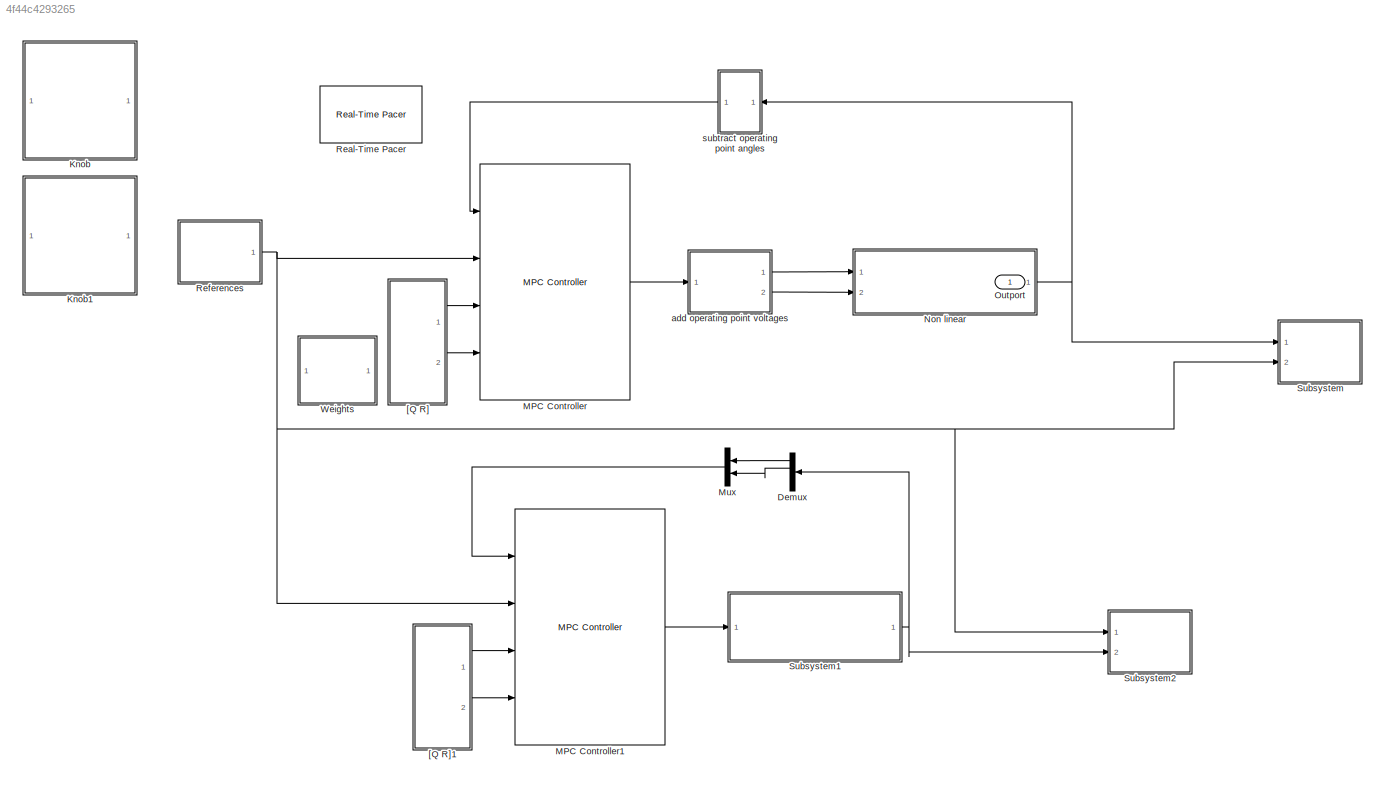
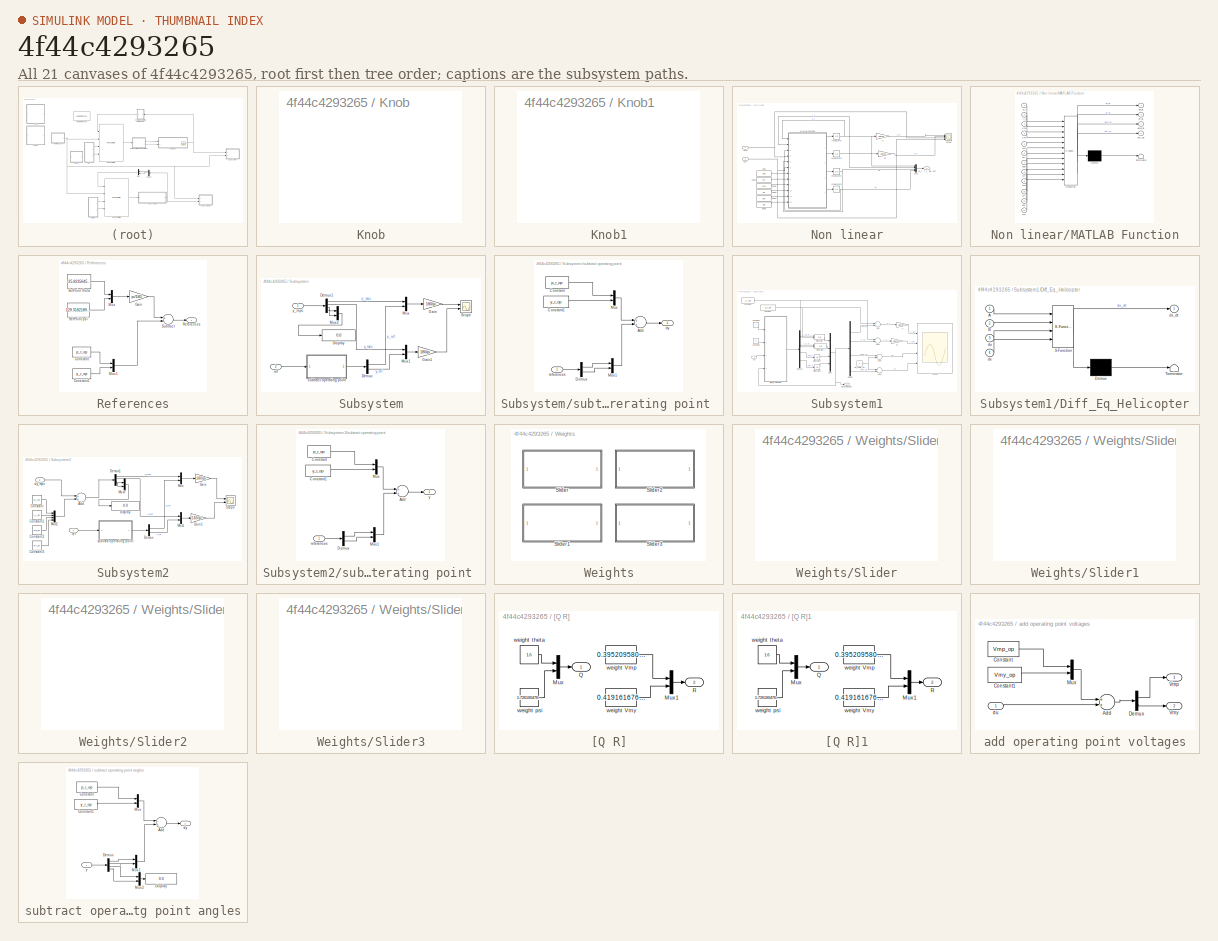
[diagram: thumbnail index - all 21 canvases of the model, root first then tree order]
MODEL slx_4f44c4293265
KIND model
CONFIG AbsTol = auto
CONFIG EnableMultiTasking = off
CONFIG FixedStep = 0.1
CONFIG MaxStep = auto
CONFIG MinStep = auto
CONFIG RelTol = 1e-3
CONFIG SampleTimeConstraint = Unconstrained
CONFIG Solver = ode4
CONFIG SolverName = ode4
CONFIG StartTime = 0.0
CONFIG StopTime = inf
BLOCK [Demux] Demux
  DisplayOption = bar
  Ports = [1, 4]
BLOCK [SubSystem] Knob
  DialogController = hmiCreateDDGDialog
  IsWebBlock = on
  MaskHideContents = on
  Ports = []
  RequestExecContextInheritance = off
BLOCK [SubSystem] Knob1
  DialogController = hmiCreateDDGDialog
  IsWebBlock = on
  MaskHideContents = on
  Ports = []
  RequestExecContextInheritance = off
BLOCK [Reference] MPC Controller  REF=mpclib/MPC Controller  (lib defined in mdl_ae329e0e0455)
  Ports = [4, 1]
  SCDEnableBlockLinearizationSpecification = on
  SourceBlock = mpclib/MPC Controller
  SourceProductBaseCode = MP
  SourceProductName = Model Predictive Control Toolbox
  SourceType = MPC
BLOCK [Reference] MPC Controller1  REF=mpclib/MPC Controller  (lib defined in mdl_ae329e0e0455)
  Ports = [4, 1]
  SCDEnableBlockLinearizationSpecification = on
  SourceBlock = mpclib/MPC Controller
  SourceProductBaseCode = MP
  SourceProductName = Model Predictive Control Toolbox
  SourceType = MPC
BLOCK [Mux] Mux
  DisplayOption = bar
  Inputs = 2
  Ports = [2, 1]
BLOCK [SubSystem] Non linear
  Ports = [2, 1]
  RequestExecContextInheritance = off
BLOCK [Integrator] Non linear/Integrator
  InitialCondition = d2r(-31.0537918783631)
  LimitOutput = on
  LowerSaturationLimit = -pi/4
  Ports = [1, 1]
  UpperSaturationLimit = pi/4
BLOCK [Integrator] Non linear/Integrator1
  InitialCondition = d2r(120.519928781055)
  LimitOutput = on
  LowerSaturationLimit = 0
  Ports = [1, 1]
  UpperSaturationLimit = pi
BLOCK [Integrator] Non linear/Integrator2
  LowerSaturationLimit = -1
  Ports = [1, 1]
  UpperSaturationLimit = 1
BLOCK [Integrator] Non linear/Integrator3
  Ports = [1, 1]
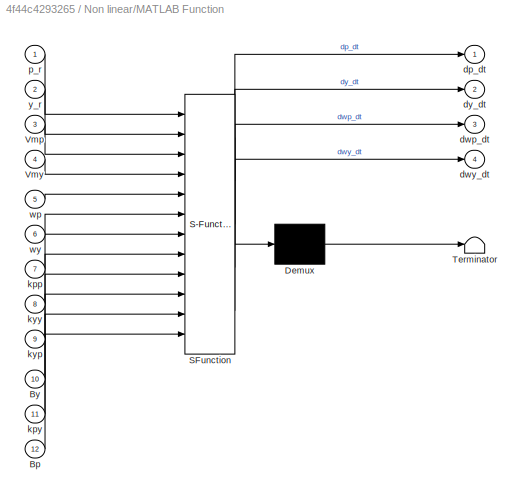
BLOCK [SubSystem] Non linear/MATLAB Function
  ErrorFcn = Stateflow.Translate.translate
  PermitHierarchicalResolution = ExplicitOnly
  Ports = [12, 4]
  RequestExecContextInheritance = off
  SFBlockType = MATLAB Function
  TreatAsAtomicUnit = on
BLOCK [Demux] Non linear/MATLAB Function/ Demux 
  Outputs = 1
  Ports = [1, 1]
BLOCK [S-Function] Non linear/MATLAB Function/ SFunction 
  EnableBusSupport = on
  FunctionName = sf_sfun
  Parameters = g,jeqp,jeqy,lcm,mheli
  PortCounts = [12 5]
  Ports = [12, 5]
  SFcnIsStateOwnerBlock = off
  SFunctionDeploymentMode = off
  Tag = Stateflow S-Function Helicopter_MPC 2
BLOCK [Terminator] Non linear/MATLAB Function/ Terminator 
BLOCK [Inport] Non linear/MATLAB Function/Bp
  IconDisplay = Port number
  Port = 12
BLOCK [Inport] Non linear/MATLAB Function/By
  IconDisplay = Port number
  Port = 10
BLOCK [Inport] Non linear/MATLAB Function/Vmp
  IconDisplay = Port number
  Port = 3
BLOCK [Inport] Non linear/MATLAB Function/Vmy
  IconDisplay = Port number
  Port = 4
BLOCK [Outport] Non linear/MATLAB Function/dp_dt
  IconDisplay = Port number
BLOCK [Outport] Non linear/MATLAB Function/dwp_dt
  IconDisplay = Port number
  Port = 3
BLOCK [Outport] Non linear/MATLAB Function/dwy_dt
  IconDisplay = Port number
  Port = 4
BLOCK [Outport] Non linear/MATLAB Function/dy_dt
  IconDisplay = Port number
  Port = 2
BLOCK [Inport] Non linear/MATLAB Function/kpp
  IconDisplay = Port number
  Port = 7
BLOCK [Inport] Non linear/MATLAB Function/kpy
  IconDisplay = Port number
  Port = 11
BLOCK [Inport] Non linear/MATLAB Function/kyp
  IconDisplay = Port number
  Port = 9
BLOCK [Inport] Non linear/MATLAB Function/kyy
  IconDisplay = Port number
  Port = 8
BLOCK [Inport] Non linear/MATLAB Function/p_r
  IconDisplay = Port number
BLOCK [Inport] Non linear/MATLAB Function/wp
  IconDisplay = Port number
  Port = 5
BLOCK [Inport] Non linear/MATLAB Function/wy
  IconDisplay = Port number
  Port = 6
BLOCK [Inport] Non linear/MATLAB Function/y_r
  IconDisplay = Port number
  Port = 2
BLOCK [Mux] Non linear/Mux
  DisplayOption = bar
  Ports = [4, 1]
BLOCK [Scope] Non linear/Scope
  Commented = on
  Floating = off
  NumInputPorts = 4
  Ports = [4]
  ScopeSpecificationString = Simulink.scopes.TimeScopeBlockCfg('CurrentConfiguration', extmgr.ConfigurationSet(extmgr.Configuration('Core','General UI',true),extmgr.Configuration('Core','Source UI',true),extmgr.Configuration('Sources','WiredSimulink',true),extmgr.Configuration('Visuals','Time Domain',true,'SerializedDisplays',{struct('MinYLimReal','-50.00000','MaxYLimReal','50.00000','YLabelReal','','MinYLimMag','0.00000','Ma...<+3364ch>
BLOCK [Inport] Non linear/Vmp
  IconDisplay = Port number
BLOCK [Inport] Non linear/Vmy
  IconDisplay = Port number
  Port = 2
BLOCK [Outport] Non linear/[p_r, y_r ,wp, wy]
  IconDisplay = Port number
BLOCK [Gain] Non linear/h
  Gain = 180/pi
  OutDataTypeStr = Inherit: Inherit via internal rule
  ParamDataTypeStr = Inherit: Inherit via internal rule
  SaturateOnIntegerOverflow = off
BLOCK [Gain] Non linear/h1
  Gain = 180/pi
  OutDataTypeStr = Inherit: Inherit via internal rule
  ParamDataTypeStr = Inherit: Inherit via internal rule
  SaturateOnIntegerOverflow = off
BLOCK [Constant] Non linear/kpp
  Value = kpp
BLOCK [Constant] Non linear/kpp1
  Value = kyy
BLOCK [Constant] Non linear/kpp2
  Value = kyp
BLOCK [Constant] Non linear/kpp3
  Value = By
BLOCK [Constant] Non linear/kpp4
  Value = kpy
BLOCK [Constant] Non linear/kpp5
  Value = Bp
BLOCK [Outport] Outport
  IconDisplay = Port number
BLOCK [Reference] Real-Time Pacer  REF=realtime_pacer_lib/Real-Time Pacer
  Ports = []
  SourceBlock = realtime_pacer_lib/Real-Time Pacer
  SourceType = RealTime_Pacer
BLOCK [SubSystem] References
  Ports = [0, 1]
  RequestExecContextInheritance = off
BLOCK [Constant] References/Constant
  Value = p_r_op
BLOCK [Constant] References/Constant1
  Value = y_r_op
BLOCK [Gain] References/Gain
  Gain = pi/180
  OutDataTypeStr = Inherit: Inherit via internal rule
  ParamDataTypeStr = Inherit: Inherit via internal rule
  SaturateOnIntegerOverflow = off
BLOCK [Mux] References/Mux
  DisplayOption = bar
  Inputs = 2
  Ports = [2, 1]
BLOCK [Mux] References/Mux1
  DisplayOption = bar
  Inputs = 2
  Ports = [2, 1]
BLOCK [Outport] References/References
  IconDisplay = Port number
BLOCK [Constant] References/SetPoint psi
  Value = 129.31821899414
BLOCK [Constant] References/SetPoint theta
  Value = -25.82356452942
BLOCK [Sum] References/Subtract
  InputSameDT = off
  Inputs = +-
  OutDataTypeStr = Inherit: Inherit via internal rule
  Ports = [2, 1]
  SaturateOnIntegerOverflow = off
BLOCK [SubSystem] Subsystem
  Ports = [2]
  RequestExecContextInheritance = off
BLOCK [Demux] Subsystem/Demux
  DisplayOption = bar
  Outputs = 2
  Ports = [1, 2]
BLOCK [Demux] Subsystem/Demux1
  DisplayOption = bar
  Ports = [1, 4]
BLOCK [Display] Subsystem/Display
  Decimation = 1
  Ports = [1]
BLOCK [Gain] Subsystem/Gain
  Gain = 180/pi
  OutDataTypeStr = Inherit: Inherit via internal rule
  ParamDataTypeStr = Inherit: Inherit via internal rule
  SaturateOnIntegerOverflow = off
BLOCK [Gain] Subsystem/Gain1
  Gain = 180/pi
  OutDataTypeStr = Inherit: Inherit via internal rule
  ParamDataTypeStr = Inherit: Inherit via internal rule
  SaturateOnIntegerOverflow = off
BLOCK [Mux] Subsystem/Mux
  DisplayOption = bar
  Inputs = 2
  Ports = [2, 1]
BLOCK [Mux] Subsystem/Mux1
  DisplayOption = bar
  Inputs = 2
  Ports = [2, 1]
BLOCK [Mux] Subsystem/Mux2
  DisplayOption = bar
  Inputs = 2
  Ports = [2, 1]
BLOCK [Scope] Subsystem/Scope
  Floating = off
  NumInputPorts = 2
  Ports = [2]
  ScopeSpecificationString = Simulink.scopes.TimeScopeBlockCfg('CurrentConfiguration', extmgr.ConfigurationSet(extmgr.Configuration('Core','General UI',true),extmgr.Configuration('Core','Source UI',true),extmgr.Configuration('Sources','WiredSimulink',true,'DataLoggingVariableName','ScopeData1'),extmgr.Configuration('Visuals','Time Domain',true,'SerializedDisplays',{struct('MinYLimReal','-46','MaxYLimReal','46','YLabelReal',''...<+2048ch>
BLOCK [Inport] Subsystem/ref
  IconDisplay = Port number
  Port = 2
BLOCK [SubSystem] Subsystem/subtract operating point 
  Ports = [1, 1]
  RequestExecContextInheritance = off
BLOCK [Sum] Subsystem/subtract operating point /Add
  InputSameDT = off
  OutDataTypeStr = Inherit: Inherit via internal rule
  Ports = [2, 1]
  SaturateOnIntegerOverflow = off
BLOCK [Constant] Subsystem/subtract operating point /Constant
  Value = p_r_op
BLOCK [Constant] Subsystem/subtract operating point /Constant1
  Value = y_r_op
BLOCK [Demux] Subsystem/subtract operating point /Demux
  DisplayOption = bar
  Outputs = 2
  Ports = [1, 2]
BLOCK [Mux] Subsystem/subtract operating point /Mux
  DisplayOption = bar
  Inputs = 2
  Ports = [2, 1]
BLOCK [Mux] Subsystem/subtract operating point /Mux1
  DisplayOption = bar
  Inputs = 2
  Ports = [2, 1]
BLOCK [Outport] Subsystem/subtract operating point /dy
  IconDisplay = Port number
BLOCK [Inport] Subsystem/subtract operating point /references 
  IconDisplay = Port number
BLOCK [Inport] Subsystem/y_mpc
  IconDisplay = Port number
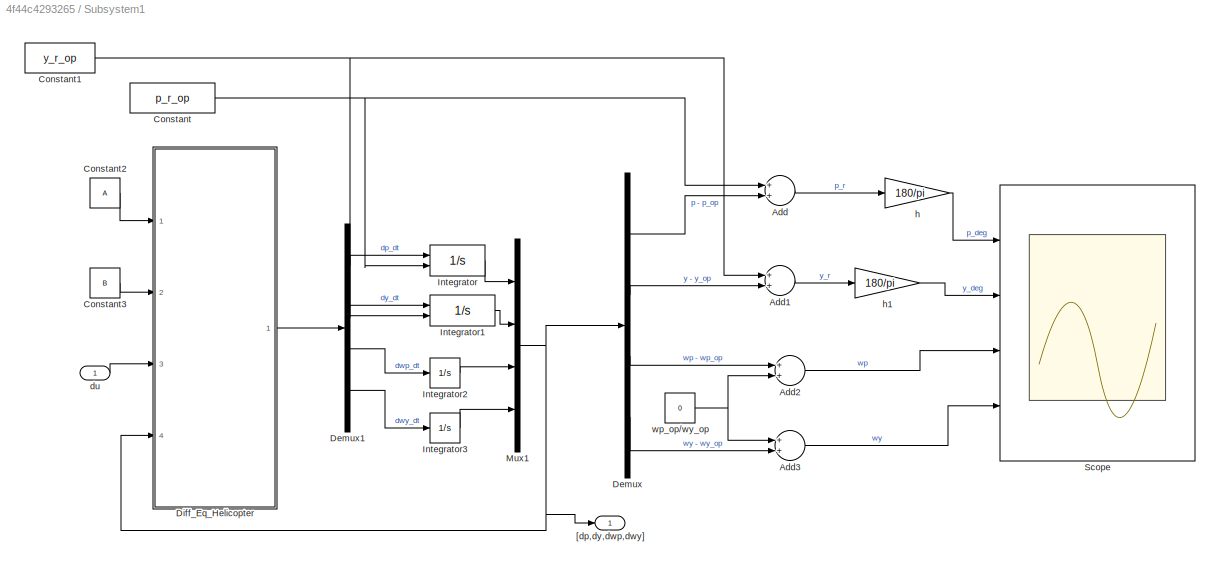
BLOCK [SubSystem] Subsystem1
  Ports = [1, 1]
  RequestExecContextInheritance = off
BLOCK [Sum] Subsystem1/Add
  InputSameDT = off
  OutDataTypeStr = Inherit: Inherit via internal rule
  Ports = [2, 1]
  SaturateOnIntegerOverflow = off
BLOCK [Sum] Subsystem1/Add1
  InputSameDT = off
  OutDataTypeStr = Inherit: Inherit via internal rule
  Ports = [2, 1]
  SaturateOnIntegerOverflow = off
BLOCK [Sum] Subsystem1/Add2
  InputSameDT = off
  OutDataTypeStr = Inherit: Inherit via internal rule
  Ports = [2, 1]
  SaturateOnIntegerOverflow = off
BLOCK [Sum] Subsystem1/Add3
  InputSameDT = off
  OutDataTypeStr = Inherit: Inherit via internal rule
  Ports = [2, 1]
  SaturateOnIntegerOverflow = off
BLOCK [Constant] Subsystem1/Constant
  Value = p_r_op
BLOCK [Constant] Subsystem1/Constant1
  Value = y_r_op
BLOCK [Constant] Subsystem1/Constant2
  Value = A
BLOCK [Constant] Subsystem1/Constant3
  Value = B
BLOCK [Demux] Subsystem1/Demux
  DisplayOption = bar
  Ports = [1, 4]
BLOCK [Demux] Subsystem1/Demux1
  DisplayOption = bar
  Ports = [1, 4]
BLOCK [SubSystem] Subsystem1/Diff_Eq_Helicopter
  ErrorFcn = Stateflow.Translate.translate
  PermitHierarchicalResolution = ExplicitOnly
  Ports = [4, 1]
  RequestExecContextInheritance = off
  SFBlockType = MATLAB Function
  TreatAsAtomicUnit = on
BLOCK [Demux] Subsystem1/Diff_Eq_Helicopter/ Demux 
  Outputs = 1
  Ports = [1, 1]
BLOCK [S-Function] Subsystem1/Diff_Eq_Helicopter/ SFunction 
  EnableBusSupport = on
  FunctionName = sf_sfun
  PortCounts = [4 2]
  Ports = [4, 2]
  SFcnIsStateOwnerBlock = off
  SFunctionDeploymentMode = off
  Tag = Stateflow S-Function Helicopter_MPC 3
BLOCK [Terminator] Subsystem1/Diff_Eq_Helicopter/ Terminator 
BLOCK [Inport] Subsystem1/Diff_Eq_Helicopter/A
  IconDisplay = Port number
BLOCK [Inport] Subsystem1/Diff_Eq_Helicopter/B
  IconDisplay = Port number
  Port = 2
BLOCK [Inport] Subsystem1/Diff_Eq_Helicopter/du
  IconDisplay = Port number
  Port = 3
BLOCK [Inport] Subsystem1/Diff_Eq_Helicopter/dx
  IconDisplay = Port number
  Port = 4
BLOCK [Outport] Subsystem1/Diff_Eq_Helicopter/dx_dt
  IconDisplay = Port number
BLOCK [Integrator] Subsystem1/Integrator
  InitialCondition = -10*pi/180
  InitialConditionSource = external
  LimitOutput = on
  LowerSaturationLimit = -pi/4 - (-10*pi/180)
  Ports = [2, 1]
  UpperSaturationLimit = pi/4 - (-10*pi/180)
BLOCK [Integrator] Subsystem1/Integrator1
  InitialCondition = pi/2
  InitialConditionSource = external
  LimitOutput = on
  LowerSaturationLimit = 0 - (pi/2)
  Ports = [2, 1]
  UpperSaturationLimit = pi - (pi/2)
BLOCK [Integrator] Subsystem1/Integrator2
  Ports = [1, 1]
  UpperSaturationLimit = pi
BLOCK [Integrator] Subsystem1/Integrator3
  Ports = [1, 1]
BLOCK [Mux] Subsystem1/Mux1
  DisplayOption = bar
  Ports = [4, 1]
BLOCK [Scope] Subsystem1/Scope
  Commented = on
  Floating = off
  NumInputPorts = 4
  Ports = [4]
  ScopeSpecificationString = Simulink.scopes.TimeScopeBlockCfg('CurrentConfiguration', extmgr.ConfigurationSet(extmgr.Configuration('Core','General UI',true,'FigureColor',[1 1 1]),extmgr.Configuration('Core','Source UI',true),extmgr.Configuration('Sources','WiredSimulink',true,'DataLoggingVariableName','ScopeData2'),extmgr.Configuration('Visuals','Time Domain',true,'SerializedDisplays',{struct('MinYLimReal','-45','MaxYLimReal...<+3682ch>
BLOCK [Outport] Subsystem1/[dp,dy,dwp,dwy]
  IconDisplay = Port number
BLOCK [Inport] Subsystem1/du
  IconDisplay = Port number
BLOCK [Gain] Subsystem1/h
  Gain = 180/pi
  OutDataTypeStr = Inherit: Inherit via internal rule
  ParamDataTypeStr = Inherit: Inherit via internal rule
  SaturateOnIntegerOverflow = off
BLOCK [Gain] Subsystem1/h1
  Gain = 180/pi
  OutDataTypeStr = Inherit: Inherit via internal rule
  ParamDataTypeStr = Inherit: Inherit via internal rule
  SaturateOnIntegerOverflow = off
BLOCK [Constant] Subsystem1/wp_op//wy_op
  Value = 0
BLOCK [SubSystem] Subsystem2
  Ports = [2]
  RequestExecContextInheritance = off
BLOCK [Sum] Subsystem2/Add
  InputSameDT = off
  OutDataTypeStr = Inherit: Inherit via internal rule
  Ports = [2, 1]
  SaturateOnIntegerOverflow = off
BLOCK [Constant] Subsystem2/Constant
  Value = p_r_op
BLOCK [Constant] Subsystem2/Constant1
  Value = y_r_op
BLOCK [Constant] Subsystem2/Constant2
  Value = wp_op
BLOCK [Constant] Subsystem2/Constant3
  Value = wy_op
BLOCK [Demux] Subsystem2/Demux
  DisplayOption = bar
  Outputs = 2
  Ports = [1, 2]
BLOCK [Demux] Subsystem2/Demux1
  DisplayOption = bar
  Ports = [1, 4]
BLOCK [Display] Subsystem2/Display
  Decimation = 1
  Ports = [1]
BLOCK [Gain] Subsystem2/Gain
  Gain = 180/pi
  OutDataTypeStr = Inherit: Inherit via internal rule
  ParamDataTypeStr = Inherit: Inherit via internal rule
  SaturateOnIntegerOverflow = off
BLOCK [Gain] Subsystem2/Gain1
  Gain = 180/pi
  OutDataTypeStr = Inherit: Inherit via internal rule
  ParamDataTypeStr = Inherit: Inherit via internal rule
  SaturateOnIntegerOverflow = off
BLOCK [Mux] Subsystem2/Mux
  DisplayOption = bar
  Inputs = 2
  Ports = [2, 1]
BLOCK [Mux] Subsystem2/Mux1
  DisplayOption = bar
  Inputs = 2
  Ports = [2, 1]
BLOCK [Mux] Subsystem2/Mux2
  DisplayOption = bar
  Ports = [4, 1]
BLOCK [Mux] Subsystem2/Mux3
  DisplayOption = bar
  Inputs = 2
  Ports = [2, 1]
BLOCK [Scope] Subsystem2/Scope
  Floating = off
  NumInputPorts = 2
  Ports = [2]
  ScopeSpecificationString = Simulink.scopes.TimeScopeBlockCfg('CurrentConfiguration', extmgr.ConfigurationSet(extmgr.Configuration('Core','General UI',true),extmgr.Configuration('Core','Source UI',true),extmgr.Configuration('Sources','WiredSimulink',true,'DataLoggingVariableName','ScopeData1'),extmgr.Configuration('Visuals','Time Domain',true,'SerializedDisplays',{struct('MinYLimReal','-46','MaxYLimReal','46','YLabelReal',''...<+2048ch>
BLOCK [Inport] Subsystem2/dy_mpc
  IconDisplay = Port number
  Port = 2
BLOCK [Inport] Subsystem2/ref
  IconDisplay = Port number
BLOCK [SubSystem] Subsystem2/subtract operating point 
  Ports = [1, 1]
  RequestExecContextInheritance = off
BLOCK [Sum] Subsystem2/subtract operating point /Add
  InputSameDT = off
  OutDataTypeStr = Inherit: Inherit via internal rule
  Ports = [2, 1]
  SaturateOnIntegerOverflow = off
BLOCK [Constant] Subsystem2/subtract operating point /Constant
  Value = p_r_op
BLOCK [Constant] Subsystem2/subtract operating point /Constant1
  Value = y_r_op
BLOCK [Demux] Subsystem2/subtract operating point /Demux
  DisplayOption = bar
  Outputs = 2
  Ports = [1, 2]
BLOCK [Mux] Subsystem2/subtract operating point /Mux
  DisplayOption = bar
  Inputs = 2
  Ports = [2, 1]
BLOCK [Mux] Subsystem2/subtract operating point /Mux1
  DisplayOption = bar
  Inputs = 2
  Ports = [2, 1]
BLOCK [Inport] Subsystem2/subtract operating point /references 
  IconDisplay = Port number
BLOCK [Outport] Subsystem2/subtract operating point /y
  IconDisplay = Port number
BLOCK [SubSystem] Weights
  Ports = []
  RequestExecContextInheritance = off
BLOCK [SubSystem] Weights/Slider
  DialogController = hmiCreateDDGDialog
  IsWebBlock = on
  MaskHideContents = on
  Ports = []
  RequestExecContextInheritance = off
BLOCK [SubSystem] Weights/Slider1
  DialogController = hmiCreateDDGDialog
  IsWebBlock = on
  MaskHideContents = on
  Ports = []
  RequestExecContextInheritance = off
BLOCK [SubSystem] Weights/Slider2
  DialogController = hmiCreateDDGDialog
  IsWebBlock = on
  MaskHideContents = on
  Ports = []
  RequestExecContextInheritance = off
BLOCK [SubSystem] Weights/Slider3
  DialogController = hmiCreateDDGDialog
  IsWebBlock = on
  MaskHideContents = on
  Ports = []
  RequestExecContextInheritance = off
BLOCK [SubSystem] [Q R]
  Ports = [0, 2]
  RequestExecContextInheritance = off
BLOCK [Mux] [Q R]/Mux
  DisplayOption = bar
  Inputs = 2
  Ports = [2, 1]
BLOCK [Mux] [Q R]/Mux1
  DisplayOption = bar
  Inputs = 2
  Ports = [2, 1]
BLOCK [Outport] [Q R]/Q
  IconDisplay = Port number
BLOCK [Outport] [Q R]/R
  IconDisplay = Port number
  Port = 2
BLOCK [Constant] [Q R]/weight Vmp
  Value = 0.3952095808383
BLOCK [Constant] [Q R]/weight Vmy
  Value = 0.4191616766467
BLOCK [Constant] [Q R]/weight psi
  Value = 1.7261904761905
BLOCK [Constant] [Q R]/weight theta
  Value = 1.6
BLOCK [SubSystem] [Q R]1
  Ports = [0, 2]
  RequestExecContextInheritance = off
BLOCK [Mux] [Q R]1/Mux
  DisplayOption = bar
  Inputs = 2
  Ports = [2, 1]
BLOCK [Mux] [Q R]1/Mux1
  DisplayOption = bar
  Inputs = 2
  Ports = [2, 1]
BLOCK [Outport] [Q R]1/Q
  IconDisplay = Port number
BLOCK [Outport] [Q R]1/R
  IconDisplay = Port number
  Port = 2
BLOCK [Constant] [Q R]1/weight Vmp
  Value = 0.3952095808383
BLOCK [Constant] [Q R]1/weight Vmy
  Value = 0.4191616766467
BLOCK [Constant] [Q R]1/weight psi
  Value = 1.7261904761905
BLOCK [Constant] [Q R]1/weight theta
  Value = 1.6
BLOCK [SubSystem] add operating point voltages
  Ports = [1, 2]
  RequestExecContextInheritance = off
BLOCK [Sum] add operating point voltages/Add
  InputSameDT = off
  OutDataTypeStr = Inherit: Inherit via internal rule
  Ports = [2, 1]
  SaturateOnIntegerOverflow = off
BLOCK [Constant] add operating point voltages/Constant
  Value = Vmp_op
BLOCK [Constant] add operating point voltages/Constant1
  Value = Vmy_op
BLOCK [Demux] add operating point voltages/Demux
  DisplayOption = bar
  Outputs = 2
  Ports = [1, 2]
BLOCK [Mux] add operating point voltages/Mux
  DisplayOption = bar
  Inputs = 2
  Ports = [2, 1]
BLOCK [Outport] add operating point voltages/Vmp
  IconDisplay = Port number
BLOCK [Outport] add operating point voltages/Vmy
  IconDisplay = Port number
  Port = 2
BLOCK [Inport] add operating point voltages/du 
  IconDisplay = Port number
BLOCK [SubSystem] subtract operating point angles
  Ports = [1, 1]
  RequestExecContextInheritance = off
BLOCK [Sum] subtract operating point angles/Add
  InputSameDT = off
  Inputs = -+
  OutDataTypeStr = Inherit: Inherit via internal rule
  Ports = [2, 1]
  SaturateOnIntegerOverflow = off
BLOCK [Constant] subtract operating point angles/Constant
  Value = p_r_op
BLOCK [Constant] subtract operating point angles/Constant1
  Value = y_r_op
BLOCK [Demux] subtract operating point angles/Demux
  DisplayOption = bar
  Ports = [1, 4]
BLOCK [Display] subtract operating point angles/Display
  Decimation = 1
  Ports = [1]
BLOCK [Mux] subtract operating point angles/Mux
  DisplayOption = bar
  Inputs = 2
  Ports = [2, 1]
BLOCK [Mux] subtract operating point angles/Mux1
  DisplayOption = bar
  Inputs = 2
  Ports = [2, 1]
BLOCK [Mux] subtract operating point angles/Mux2
  DisplayOption = bar
  Inputs = 2
  Ports = [2, 1]
BLOCK [Outport] subtract operating point angles/dy
  IconDisplay = Port number
BLOCK [Inport] subtract operating point angles/y 
  IconDisplay = Port number
LINE Demux:1 -> Mux:1
LINE Demux:2 -> Mux:2
LINE MPC Controller1:1 -> Subsystem1:1
LINE MPC Controller:1 -> add operating point voltages:1
LINE Mux:1 -> MPC Controller1:1
NET Non linear/Integrator1:1 -> Non linear/MATLAB Function:2, Non linear/Mux:2, Non linear/h1:1
NET Non linear/Integrator2:1 -> Non linear/MATLAB Function:5, Non linear/Mux:3
NET Non linear/Integrator3:1 -> Non linear/MATLAB Function:6, Non linear/Mux:4
NET Non linear/Integrator:1 -> Non linear/MATLAB Function:1, Non linear/Mux:1, Non linear/h:1
LINE Non linear/MATLAB Function:1 -> Non linear/Integrator:1
LINE Non linear/MATLAB Function:2 -> Non linear/Integrator1:1
LINE Non linear/MATLAB Function:3 -> Non linear/Integrator2:1
LINE Non linear/MATLAB Function:4 -> Non linear/Integrator3:1
LINE Non linear/Mux:1 -> Non linear/[p_r, y_r ,wp, wy]:1
NET Non linear/Vmp:1 -> Non linear/MATLAB Function:3, Non linear/Scope:3
NET Non linear/Vmy:1 -> Non linear/MATLAB Function:4, Non linear/Scope:4
LINE Non linear/h1:1 -> Non linear/Scope:2
LINE Non linear/h:1 -> Non linear/Scope:1
LINE Non linear/kpp1:1 -> Non linear/MATLAB Function:8
LINE Non linear/kpp2:1 -> Non linear/MATLAB Function:9
LINE Non linear/kpp3:1 -> Non linear/MATLAB Function:10
LINE Non linear/kpp4:1 -> Non linear/MATLAB Function:11
LINE Non linear/kpp5:1 -> Non linear/MATLAB Function:12
LINE Non linear/kpp:1 -> Non linear/MATLAB Function:7
NET Non linear:1 -> Subsystem:1, subtract operating point angles:1
LINE References/Constant1:1 -> References/Mux1:2
LINE References/Constant:1 -> References/Mux1:1
LINE References/Gain:1 -> References/Subtract:1
LINE References/Mux1:1 -> References/Subtract:2
LINE References/Mux:1 -> References/Gain:1
LINE References/SetPoint psi:1 -> References/Mux:2
LINE References/SetPoint theta:1 -> References/Mux:1
LINE References/Subtract:1 -> References/References:1
NET References:1 -> MPC Controller1:2, MPC Controller:2, Subsystem2:1, Subsystem:2
LINE Subsystem/Demux1:1 -> Subsystem/Mux:1
LINE Subsystem/Demux1:2 -> Subsystem/Mux1:1
LINE Subsystem/Demux1:3 -> Subsystem/Mux2:1
LINE Subsystem/Demux1:4 -> Subsystem/Mux2:2
LINE Subsystem/Demux:1 -> Subsystem/Mux:2
LINE Subsystem/Demux:2 -> Subsystem/Mux1:2
LINE Subsystem/Gain1:1 -> Subsystem/Scope:2
LINE Subsystem/Gain:1 -> Subsystem/Scope:1
LINE Subsystem/Mux1:1 -> Subsystem/Gain1:1
LINE Subsystem/Mux2:1 -> Subsystem/Display:1
LINE Subsystem/Mux:1 -> Subsystem/Gain:1
LINE Subsystem/ref:1 -> Subsystem/subtract operating point :1
LINE Subsystem/subtract operating point /Add:1 -> Subsystem/subtract operating point /dy:1
LINE Subsystem/subtract operating point /Constant1:1 -> Subsystem/subtract operating point /Mux:2
LINE Subsystem/subtract operating point /Constant:1 -> Subsystem/subtract operating point /Mux:1
LINE Subsystem/subtract operating point /Demux:1 -> Subsystem/subtract operating point /Mux1:1
LINE Subsystem/subtract operating point /Demux:2 -> Subsystem/subtract operating point /Mux1:2
LINE Subsystem/subtract operating point /Mux1:1 -> Subsystem/subtract operating point /Add:2
LINE Subsystem/subtract operating point /Mux:1 -> Subsystem/subtract operating point /Add:1
LINE Subsystem/subtract operating point /references :1 -> Subsystem/subtract operating point /Demux:1
LINE Subsystem/subtract operating point :1 -> Subsystem/Demux:1
LINE Subsystem/y_mpc:1 -> Subsystem/Demux1:1
LINE Subsystem1/Add1:1 -> Subsystem1/h1:1
LINE Subsystem1/Add2:1 -> Subsystem1/Scope:3
LINE Subsystem1/Add3:1 -> Subsystem1/Scope:4
LINE Subsystem1/Add:1 -> Subsystem1/h:1
NET Subsystem1/Constant1:1 -> Subsystem1/Add1:1, Subsystem1/Integrator1:2
LINE Subsystem1/Constant2:1 -> Subsystem1/Diff_Eq_Helicopter:1
LINE Subsystem1/Constant3:1 -> Subsystem1/Diff_Eq_Helicopter:2
NET Subsystem1/Constant:1 -> Subsystem1/Add:1, Subsystem1/Integrator:2
LINE Subsystem1/Demux1:1 -> Subsystem1/Integrator:1
LINE Subsystem1/Demux1:2 -> Subsystem1/Integrator1:1
LINE Subsystem1/Demux1:3 -> Subsystem1/Integrator2:1
LINE Subsystem1/Demux1:4 -> Subsystem1/Integrator3:1
LINE Subsystem1/Demux:1 -> Subsystem1/Add:2
LINE Subsystem1/Demux:2 -> Subsystem1/Add1:2
LINE Subsystem1/Demux:3 -> Subsystem1/Add2:1
LINE Subsystem1/Demux:4 -> Subsystem1/Add3:2
LINE Subsystem1/Diff_Eq_Helicopter:1 -> Subsystem1/Demux1:1
LINE Subsystem1/Integrator1:1 -> Subsystem1/Mux1:2
LINE Subsystem1/Integrator2:1 -> Subsystem1/Mux1:3
LINE Subsystem1/Integrator3:1 -> Subsystem1/Mux1:4
LINE Subsystem1/Integrator:1 -> Subsystem1/Mux1:1
NET Subsystem1/Mux1:1 -> Subsystem1/Demux:1, Subsystem1/Diff_Eq_Helicopter:4, Subsystem1/[dp,dy,dwp,dwy]:1
LINE Subsystem1/du:1 -> Subsystem1/Diff_Eq_Helicopter:3
LINE Subsystem1/h1:1 -> Subsystem1/Scope:2
LINE Subsystem1/h:1 -> Subsystem1/Scope:1
NET Subsystem1/wp_op//wy_op:1 -> Subsystem1/Add2:2, Subsystem1/Add3:1
NET Subsystem1:1 -> Demux:1, Subsystem2:2
LINE Subsystem2/Add:1 -> Subsystem2/Demux1:1
LINE Subsystem2/Constant1:1 -> Subsystem2/Mux2:2
LINE Subsystem2/Constant2:1 -> Subsystem2/Mux2:3
LINE Subsystem2/Constant3:1 -> Subsystem2/Mux2:4
LINE Subsystem2/Constant:1 -> Subsystem2/Mux2:1
LINE Subsystem2/Demux1:1 -> Subsystem2/Mux:1
LINE Subsystem2/Demux1:2 -> Subsystem2/Mux1:1
LINE Subsystem2/Demux1:3 -> Subsystem2/Mux3:1
LINE Subsystem2/Demux1:4 -> Subsystem2/Mux3:2
LINE Subsystem2/Demux:1 -> Subsystem2/Mux:2
LINE Subsystem2/Demux:2 -> Subsystem2/Mux1:2
LINE Subsystem2/Gain1:1 -> Subsystem2/Scope:2
LINE Subsystem2/Gain:1 -> Subsystem2/Scope:1
LINE Subsystem2/Mux1:1 -> Subsystem2/Gain1:1
LINE Subsystem2/Mux2:1 -> Subsystem2/Add:2
LINE Subsystem2/Mux3:1 -> Subsystem2/Display:1
LINE Subsystem2/Mux:1 -> Subsystem2/Gain:1
LINE Subsystem2/dy_mpc:1 -> Subsystem2/Add:1
LINE Subsystem2/ref:1 -> Subsystem2/subtract operating point :1
LINE Subsystem2/subtract operating point /Add:1 -> Subsystem2/subtract operating point /y:1
LINE Subsystem2/subtract operating point /Constant1:1 -> Subsystem2/subtract operating point /Mux:2
LINE Subsystem2/subtract operating point /Constant:1 -> Subsystem2/subtract operating point /Mux:1
LINE Subsystem2/subtract operating point /Demux:1 -> Subsystem2/subtract operating point /Mux1:1
LINE Subsystem2/subtract operating point /Demux:2 -> Subsystem2/subtract operating point /Mux1:2
LINE Subsystem2/subtract operating point /Mux1:1 -> Subsystem2/subtract operating point /Add:2
LINE Subsystem2/subtract operating point /Mux:1 -> Subsystem2/subtract operating point /Add:1
LINE Subsystem2/subtract operating point /references :1 -> Subsystem2/subtract operating point /Demux:1
LINE Subsystem2/subtract operating point :1 -> Subsystem2/Demux:1
LINE [Q R]/Mux1:1 -> [Q R]/R:1
LINE [Q R]/Mux:1 -> [Q R]/Q:1
LINE [Q R]/weight Vmp:1 -> [Q R]/Mux1:1
LINE [Q R]/weight Vmy:1 -> [Q R]/Mux1:2
LINE [Q R]/weight psi:1 -> [Q R]/Mux:2
LINE [Q R]/weight theta:1 -> [Q R]/Mux:1
LINE [Q R]1/Mux1:1 -> [Q R]1/R:1
LINE [Q R]1/Mux:1 -> [Q R]1/Q:1
LINE [Q R]1/weight Vmp:1 -> [Q R]1/Mux1:1
LINE [Q R]1/weight Vmy:1 -> [Q R]1/Mux1:2
LINE [Q R]1/weight psi:1 -> [Q R]1/Mux:2
LINE [Q R]1/weight theta:1 -> [Q R]1/Mux:1
LINE [Q R]1:1 -> MPC Controller1:3
LINE [Q R]1:2 -> MPC Controller1:4
LINE [Q R]:1 -> MPC Controller:3
LINE [Q R]:2 -> MPC Controller:4
LINE add operating point voltages/Add:1 -> add operating point voltages/Demux:1
LINE add operating point voltages/Constant1:1 -> add operating point voltages/Mux:2
LINE add operating point voltages/Constant:1 -> add operating point voltages/Mux:1
LINE add operating point voltages/Demux:1 -> add operating point voltages/Vmp:1
LINE add operating point voltages/Demux:2 -> add operating point voltages/Vmy:1
LINE add operating point voltages/Mux:1 -> add operating point voltages/Add:1
LINE add operating point voltages/du :1 -> add operating point voltages/Add:2
LINE add operating point voltages:1 -> Non linear:1
LINE add operating point voltages:2 -> Non linear:2
LINE subtract operating point angles/Add:1 -> subtract operating point angles/dy:1
LINE subtract operating point angles/Constant1:1 -> subtract operating point angles/Mux:2
LINE subtract operating point angles/Constant:1 -> subtract operating point angles/Mux:1
LINE subtract operating point angles/Demux:1 -> subtract operating point angles/Mux1:1
LINE subtract operating point angles/Demux:2 -> subtract operating point angles/Mux1:2
LINE subtract operating point angles/Demux:3 -> subtract operating point angles/Mux2:1
LINE subtract operating point angles/Demux:4 -> subtract operating point angles/Mux2:2
LINE subtract operating point angles/Mux1:1 -> subtract operating point angles/Add:2
LINE subtract operating point angles/Mux2:1 -> subtract operating point angles/Display:1
LINE subtract operating point angles/Mux:1 -> subtract operating point angles/Add:1
LINE subtract operating point angles/y :1 -> subtract operating point angles/Demux:1
LINE subtract operating point angles:1 -> MPC Controller:1
note: NET lines group one-source signal fan-out (src -> all destinations, sorted); 1:1 wires keep LINE
CHART Non linear/MATLAB Function states=1 transitions=1
  STATE_LABEL 'eML_blk_kernel()'
  STATE_LABEL 'SCRIPT:\nfunction [dp_dt, dy_dt, dwp_dt, dwy_dt]= fcn(p_r,y_r,Vmp, Vmy,wp,wy, lcm, mheli, jeqp, jeqy, g, kpp, kyy, kyp, By, kpy, Bp)\n\n  %%Parameters\n%   \n%   Bp,\n%   By,\n%   g,\n%   kpp,\n%   kyp,\n%   kyy,\n%   kpy,\n%   mheli,\n%   lcm,\n%   jeqp,\n%   jeqy,\n  \n\n%%\n   dp_dt = wp;\n   dy_dt = wy;\n   \n   %%\n   dwp_dt_n1 = (kpp*Vmp);\n   dwp_dt_n2 = (kpy*Vmy);\n   dwp_dt_n3 = (Bp*wp+ (mheli*(wy.^2)*sin(p_r)*(l...<+419ch>'
CHART Subsystem1/Diff_Eq_Helicopter states=1 transitions=1
  STATE_LABEL 'eML_blk_kernel()'
  STATE_LABEL 'SCRIPT:\nfunction dx_dt = fcn(A,B,du,dx)\n\ndx_dt =A*dx + B*(du);\n'
